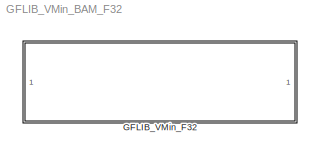
MODEL GFLIB_VMin_BAM_F32
KIND model
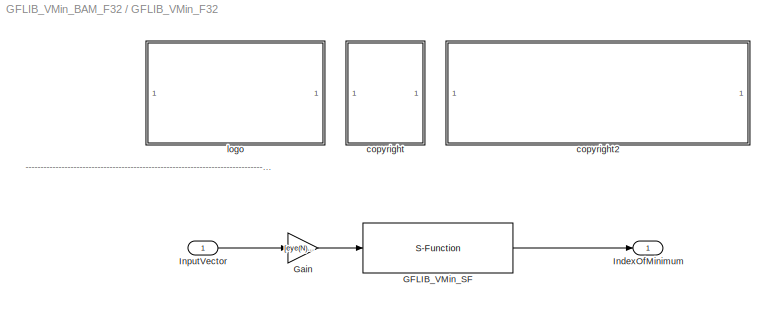
BLOCK [SubSystem] GFLIB_VMin_F32
  Ports = [1, 1]
  RequestExecContextInheritance = off
  SID = 1
BLOCK [S-Function] GFLIB_VMin_F32/GFLIB_VMin_SF
  EnableBusSupport = off
  FunctionName = GFLIB_VMin_SF_F32
  Parameters = N
  Ports = [1, 1]
  SID = 4
BLOCK [Gain] GFLIB_VMin_F32/Gain
  Gain = [eye(N) zeros(N,256-N)]'
  Multiplication = Matrix(K*u)
  OutDataTypeStr = int32
  ParamDataTypeStr = Inherit: Inherit via internal rule
  SID = 18
  SaturateOnIntegerOverflow = off
BLOCK [Outport] GFLIB_VMin_F32/IndexOfMinimum
  IconDisplay = Port number
  SID = 6
BLOCK [Inport] GFLIB_VMin_F32/InputVector
  IconDisplay = Port number
  SID = 5
BLOCK [SubSystem] GFLIB_VMin_F32/<copyright redacted>
  Ports = []
  RequestExecContextInheritance = off
  SID = 11
BLOCK [SubSystem] GFLIB_VMin_F32/copyright2
  Ports = []
  RequestExecContextInheritance = off
  SID = 14
BLOCK [SubSystem] GFLIB_VMin_F32/logo
  Ports = []
  RequestExecContextInheritance = off
  SID = 7
ANNOTATION GFLIB_VMin_F32: ---------------------------------------------------------------------------------------------------------------------------------------------------------------------------------------------------
LINE GFLIB_VMin_F32/GFLIB_VMin_SF:1 -> GFLIB_VMin_F32/IndexOfMinimum:1
LINE GFLIB_VMin_F32/Gain:1 -> GFLIB_VMin_F32/GFLIB_VMin_SF:1
LINE GFLIB_VMin_F32/InputVector:1 -> GFLIB_VMin_F32/Gain:1
